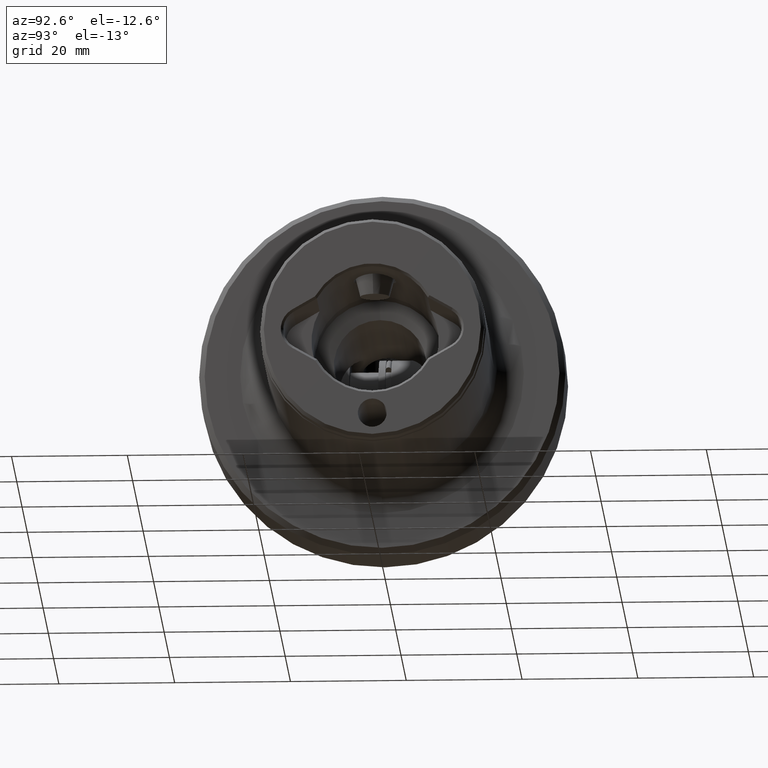
[diagram: clean part render]
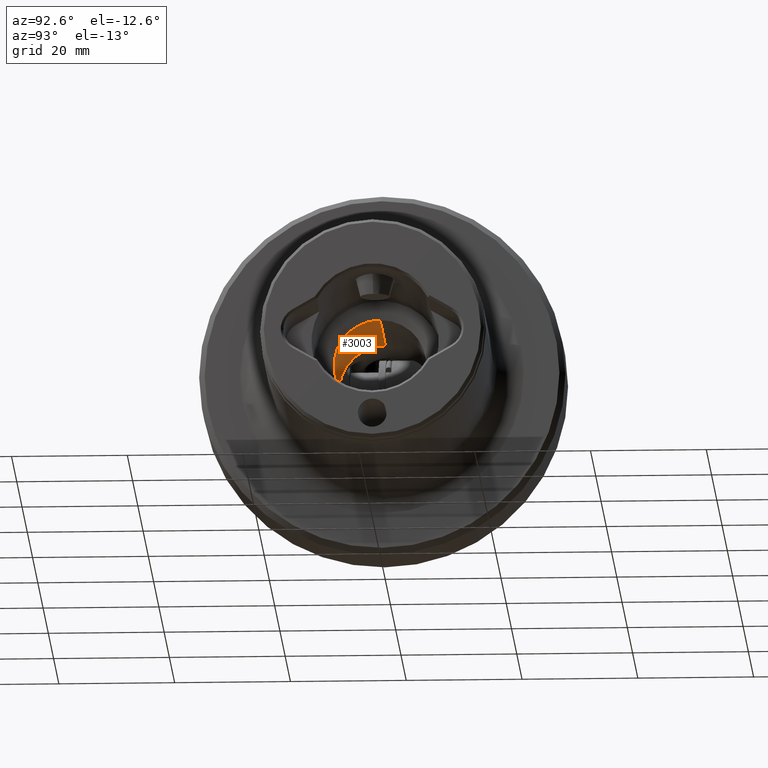
[diagram: same view with one face highlighted and labeled with its STEP entity id]
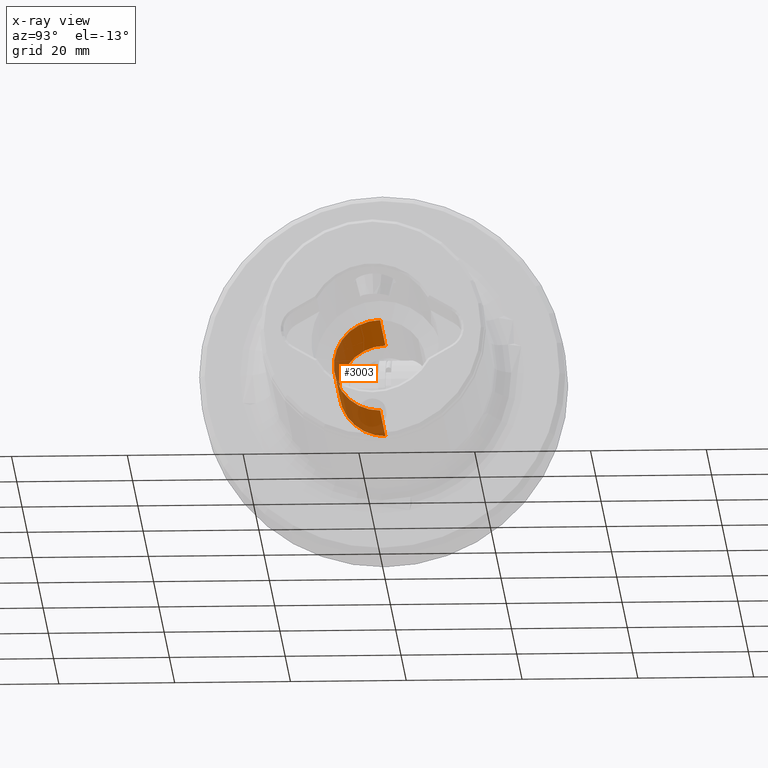
[diagram: x-ray of the same camera — body ghosted, the highlighted face saturated]
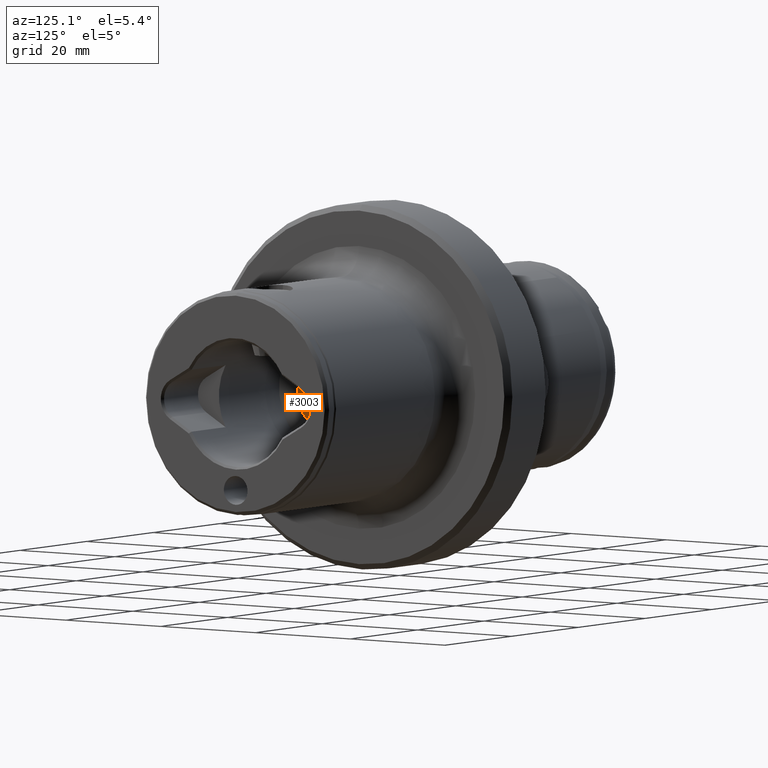
[diagram: same view with one face highlighted and labeled with its STEP entity id]
A machine part, auxiliary view. The second image highlights one B-rep face of the part: STEP entity #3003.
The next image is the same camera in x-ray: the body ghosted, the highlighted face saturated — about 41% of this face is hidden behind the body in this view.
A second angle (auxiliary view) of the same face is appended — the face is thin or edge-on in the first view.
In plain terms, the highlighted cylindrical surface (partial cylindrical patch) has radius 8 mm, axis along (1, 0, 0).
Its self-contained STEP definition (entity closure, byte-faithful):
#28 = DIRECTION ( 'NONE',  ( 0.0000000000000000000, 0.0000000000000000000, -1.000000000000000000 ) ) ;
#129 = EDGE_CURVE ( 'NONE', #312, #4335, #2825, .T. ) ;
#312 = VERTEX_POINT ( 'NONE', #381 ) ;
#381 = CARTESIAN_POINT ( 'NONE',  ( 59.24967837884192100, 9.797174393178813800E-016, 7.999999999999989300 ) ) ;
#401 = DIRECTION ( 'NONE',  ( 1.000000000000000000, -0.0000000000000000000, -0.0000000000000000000 ) ) ;
#493 = AXIS2_PLACEMENT_3D ( 'NONE', #3124, #725, #3529 ) ;
#542 = LINE ( 'NONE', #1651, #2664 ) ;
#666 = CYLINDRICAL_SURFACE ( 'NONE', #4540, 7.999999999999989300 ) ;
#725 = DIRECTION ( 'NONE',  ( -1.000000000000000000, -0.0000000000000000000, -0.0000000000000000000 ) ) ;
#815 = AXIS2_PLACEMENT_3D ( 'NONE', #3206, #401, #2797 ) ;
#870 = DIRECTION ( 'NONE',  ( 1.000000000000000000, -0.0000000000000000000, -0.0000000000000000000 ) ) ;
#925 = ORIENTED_EDGE ( 'NONE', *, *, #4851, .T. ) ;
#974 = VECTOR ( 'NONE', #1939, 1000.000000000000000 ) ;
#1046 = CARTESIAN_POINT ( 'NONE',  ( 39.00000000000000000, 9.797174393178825700E-016, -8.000000000000000000 ) ) ;
#1105 = EDGE_LOOP ( 'NONE', ( #925, #2983, #2222, #2890 ) ) ;
#1258 = VERTEX_POINT ( 'NONE', #1438 ) ;
#1438 = CARTESIAN_POINT ( 'NONE',  ( 39.00000000000000000, 0.0000000000000000000, 8.000000000000000000 ) ) ;
#1651 = CARTESIAN_POINT ( 'NONE',  ( 89.00000000000000000, 0.0000000000000000000, -7.999999999999989300 ) ) ;
#1855 = FACE_OUTER_BOUND ( 'NONE', #1105, .T. ) ;
#1939 = DIRECTION ( 'NONE',  ( 1.000000000000000000, -0.0000000000000000000, -0.0000000000000000000 ) ) ;
#2222 = ORIENTED_EDGE ( 'NONE', *, *, #129, .T. ) ;
#2664 = VECTOR ( 'NONE', #870, 1000.000000000000000 ) ;
#2703 = CARTESIAN_POINT ( 'NONE',  ( 89.00000000000000000, 9.797174393178813800E-016, 7.999999999999989300 ) ) ;
#2797 = DIRECTION ( 'NONE',  ( 0.0000000000000000000, 0.0000000000000000000, -1.000000000000000000 ) ) ;
#2825 = CIRCLE ( 'NONE', #815, 7.999999999999989300 ) ;
#2890 = ORIENTED_EDGE ( 'NONE', *, *, #3036, .F. ) ;
#2983 = ORIENTED_EDGE ( 'NONE', *, *, #3950, .T. ) ;
#3003 = ADVANCED_FACE ( 'NONE', ( #1855 ), #666, .F. ) ;
#3036 = EDGE_CURVE ( 'NONE', #4368, #4335, #542, .T. ) ;
#3124 = CARTESIAN_POINT ( 'NONE',  ( 39.00000000000000000, 0.0000000000000000000, 0.0000000000000000000 ) ) ;
#3206 = CARTESIAN_POINT ( 'NONE',  ( 59.24967837884192100, 0.0000000000000000000, 0.0000000000000000000 ) ) ;
#3529 = DIRECTION ( 'NONE',  ( 0.0000000000000000000, 0.0000000000000000000, 1.000000000000000000 ) ) ;
#3813 = CARTESIAN_POINT ( 'NONE',  ( 59.24967837884192100, 0.0000000000000000000, -7.999999999999989300 ) ) ;
#3950 = EDGE_CURVE ( 'NONE', #1258, #312, #4056, .T. ) ;
#4056 = LINE ( 'NONE', #2703, #974 ) ;
#4335 = VERTEX_POINT ( 'NONE', #3813 ) ;
#4368 = VERTEX_POINT ( 'NONE', #1046 ) ;
#4437 = CARTESIAN_POINT ( 'NONE',  ( 89.00000000000000000, 0.0000000000000000000, 0.0000000000000000000 ) ) ;
#4540 = AXIS2_PLACEMENT_3D ( 'NONE', #4437, #4810, #28 ) ;
#4788 = CIRCLE ( 'NONE', #493, 8.000000000000000000 ) ;
#4810 = DIRECTION ( 'NONE',  ( 1.000000000000000000, -0.0000000000000000000, -0.0000000000000000000 ) ) ;
#4851 = EDGE_CURVE ( 'NONE', #4368, #1258, #4788, .T. ) ;